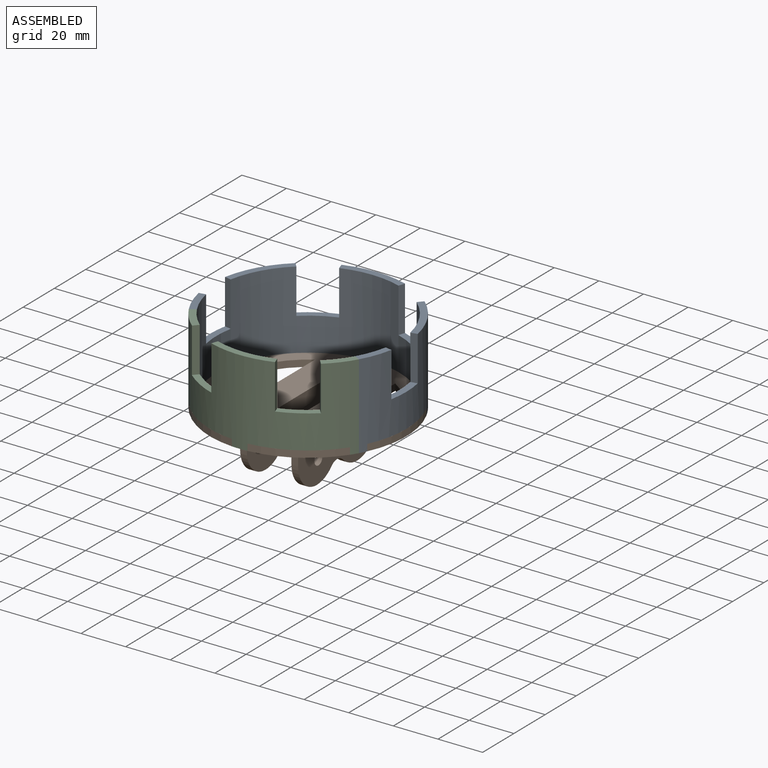
[diagram: assembled view]
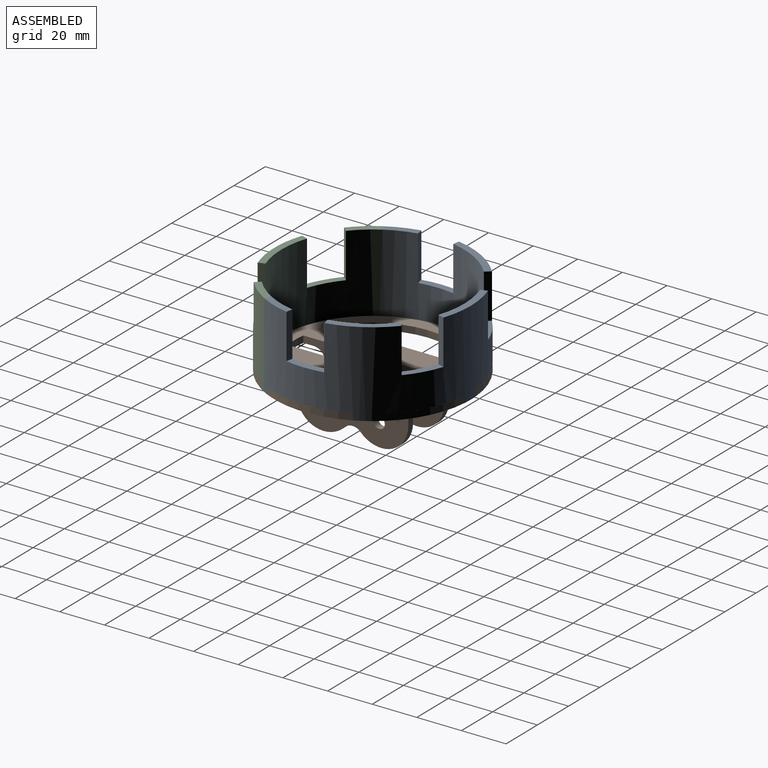
[diagram: assembled view, second angle]
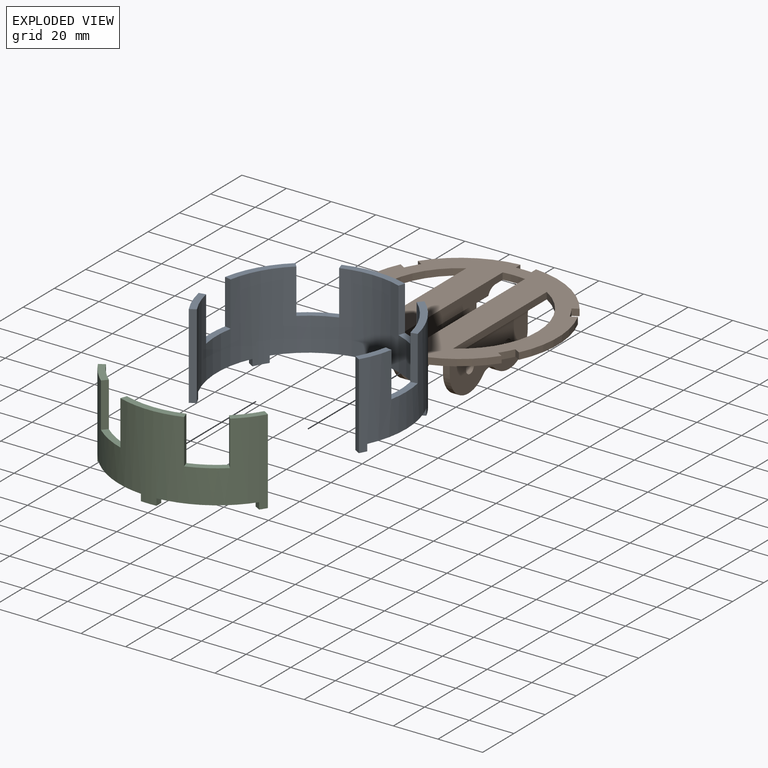
[diagram: exploded view]
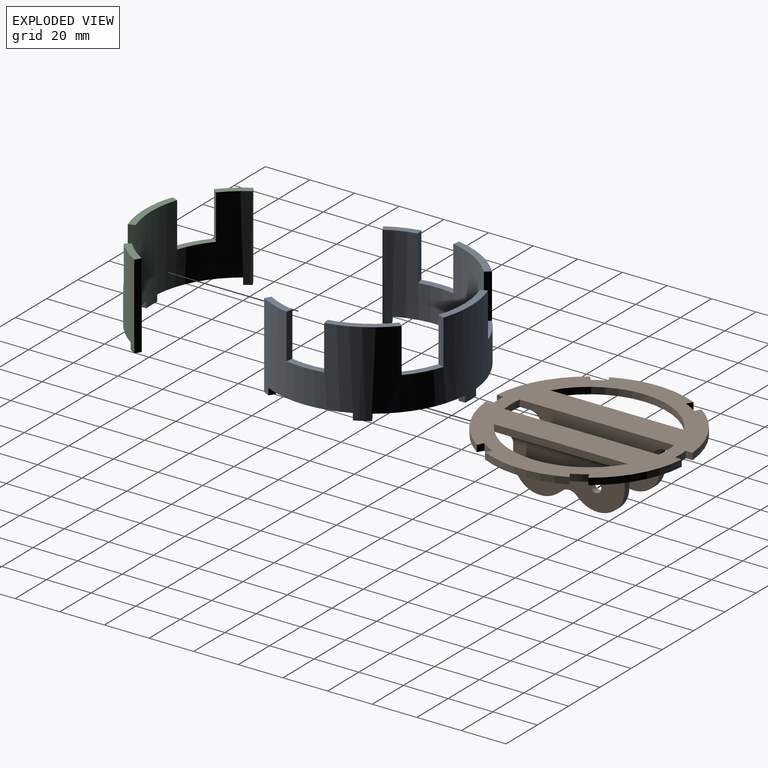
[diagram: exploded view, second angle]
ASSEMBLY  parts=3 mates=2
PART A: 38 faces, bbox 88x66x38 mm
  f0: plane 25.3x16.24mm, normal (0,0,1), area 84mm2, adj f7,f9,f32,f36
  f1: plane 28.55x5.21mm, normal (0,0,1), area 84mm2, adj f7,f9,f29,f33
  f2: plane 25.3x16.24mm, normal (0,0,1), area 84mm2, adj f7,f9,f26,f30
  f3: plane 14.13x7.67mm, normal (0,0,1), area 42mm2, adj f7,f9,f10,f27
  f4: plane 37.8x6.86mm, normal (0,0,-1), area 112.1mm2, adj f7,f9,f18,f23
  f5: plane 32.73x20.4mm, normal (0,0,-1), area 112.1mm2, adj f7,f9,f13,f21
  f6: plane 32.73x20.4mm, normal (0,0,-1), area 112.1mm2, adj f7,f9,f14,f24
  f7: cylinder r=41.01mm len=82.02mm, axis (0,0,-1), area 4828.6mm2, adj f0,f1,f2,f3,f4,f5,f6,f8
  f8: plane 38x2.59mm, normal (0.5,0.87,0), area 113.6mm2, adj f7,f9,f11,f19
  f9: cylinder r=44mm len=88mm, axis (0,0,-1), area 5174.5mm2, adj f0,f1,f2,f3,f4,f5,f6,f8
  f10: plane 38x2.59mm, normal (-0.5,0.87,0), area 113.6mm2, adj f3,f7,f9,f17
  f11: plane 14.12x7.66mm, normal (0,0,1), area 42mm2, adj f7,f8,f9,f35
  f12: plane 37.8x6.86mm, normal (0,0,-1), area 112.1mm2, adj f7,f9,f16,f20
  f13: plane 3x3mm, normal (1,0,0), area 9mm2, adj f5,f7,f9,f15
  f14: plane 3x3mm, normal (-1,0,0), area 9mm2, adj f6,f7,f9,f15
  f15: plane 7x3.14mm, normal (0,0,-1), area 21mm2, adj f7,f9,f13,f14
  f16: plane 3x2.6mm, normal (0.5,-0.87,0), area 9mm2, adj f7,f9,f12,f17
  f17: plane 4.6x4.22mm, normal (0,0,-1), area 10.5mm2, adj f7,f9,f10,f16
  f18: plane 3x2.6mm, normal (-0.5,-0.87,0), area 9mm2, adj f4,f7,f9,f19
  f19: plane 4.6x4.22mm, normal (0,0,-1), area 10.5mm2, adj f7,f8,f9,f18
  f20: plane 3x2.6mm, normal (0.5,0.87,0), area 9mm2, adj f7,f9,f12,f22
  f21: plane 3x2.6mm, normal (-0.5,-0.87,0), area 9mm2, adj f5,f7,f9,f22
  f22: plane 7.56x6.1mm, normal (0,0,-1), area 21mm2, adj f7,f9,f20,f21
  f23: plane 3x2.6mm, normal (-0.5,0.87,0), area 9mm2, adj f4,f7,f9,f25
  f24: plane 3x2.6mm, normal (0.5,-0.87,0), area 9mm2, adj f6,f7,f9,f25
  f25: plane 7.56x6.1mm, normal (0,0,-1), area 21mm2, adj f7,f9,f23,f24
  f26: plane 20x2.93mm, normal (0.19,0.98,0), area 59.8mm2, adj f2,f7,f9,f28
  f27: plane 20x2.93mm, normal (0.19,-0.98,0), area 59.8mm2, adj f3,f7,f9,f28
  f28: plane 16.9x3.75mm, normal (0,0,1), area 49.1mm2, adj f7,f9,f26,f27
  f29: plane 20x2.83mm, normal (0.95,0.32,0), area 59.8mm2, adj f1,f7,f9,f31
  f30: plane 20x2.25mm, normal (-0.75,-0.66,0), area 59.8mm2, adj f2,f7,f9,f31
  f31: plane 15.6x10.7mm, normal (0,0,1), area 49.1mm2, adj f7,f9,f29,f30
  f32: plane 20x2.25mm, normal (0.75,-0.66,0), area 59.8mm2, adj f0,f7,f9,f34
  f33: plane 20x2.83mm, normal (-0.95,0.32,0), area 59.8mm2, adj f1,f7,f9,f34
  f34: plane 15.6x10.7mm, normal (0,0,1), area 49.1mm2, adj f7,f9,f32,f33
  f35: plane 20x2.93mm, normal (-0.19,-0.98,0), area 59.8mm2, adj f7,f9,f11,f37
  f36: plane 20x2.93mm, normal (-0.19,0.98,0), area 59.8mm2, adj f0,f7,f9,f37
  f37: plane 16.9x3.75mm, normal (0,0,1), area 49.1mm2, adj f7,f9,f35,f36
PART B: 64 faces, bbox 88x87.7x26 mm
  f0: plane 50x18mm, normal (-1,0,0), area 739.2mm2, adj f4,f8,f35,f36,f40,f41,f53,f58
  f1: plane 6x3mm, normal (0,-1,0), area 18mm2, adj f5,f6,f42,f57
  f2: plane 6x3mm, normal (0,1,0), area 18mm2, adj f5,f6,f43,f55
  f3: plane 50.84x5mm, normal (0,0,-1), area 254.2mm2, adj f6,f46,f55,f57
  f4: plane 6x3mm, normal (0,-1,0), area 18mm2, adj f0,f7,f41,f52
  f5: plane 50x18mm, normal (1,0,0), area 739.2mm2, adj f1,f2,f37,f38,f42,f43,f56,f60
  f6: plane 50.84x20mm, normal (-1,0,0), area 839.8mm2, adj f1,f2,f3,f37,f38,f42,f43,f55
  f7: plane 50.84x20mm, normal (1,0,0), area 839.8mm2, adj f4,f8,f35,f36,f39,f40,f41,f52
  f8: plane 6x3mm, normal (0,1,0), area 18mm2, adj f0,f7,f40,f54
  f9: plane 3x2.6mm, normal (-0.5,0.87,0), area 9mm2, adj f10,f32,f33,f34
  f10: cylinder r=44mm len=32.73mm, axis (0,0,-1), area 117.2mm2, adj f9,f11,f33,f34
  f11: plane 3x3mm, normal (1,0,0), area 9mm2, adj f10,f12,f33,f34
  f12: cylinder r=41.01mm len=7mm, axis (0,0,-1), area 21mm2, adj f11,f13,f33,f34
  f13: plane 3x3mm, normal (-1,0,0), area 9mm2, adj f12,f14,f33,f34
  f14: cylinder r=44mm len=32.73mm, axis (0,0,-1), area 117.2mm2, adj f13,f15,f33,f34
  f15: plane 3x2.6mm, normal (0.5,0.87,0), area 9mm2, adj f14,f16,f33,f34
  f16: cylinder r=41.01mm len=6.06mm, axis (0,0,-1), area 21mm2, adj f15,f17,f33,f34
  f17: plane 3x2.6mm, normal (-0.5,-0.87,0), area 9mm2, adj f16,f18,f33,f34
  f18: cylinder r=44mm len=37.8mm, axis (0,0,-1), area 117.2mm2, adj f17,f19,f33,f34
  f19: plane 3x2.6mm, normal (-0.5,0.87,0), area 9mm2, adj f18,f20,f33,f34
  f20: cylinder r=41.01mm len=6.06mm, axis (0,0,-1), area 21mm2, adj f19,f21,f33,f34
  f21: plane 3x2.6mm, normal (0.5,-0.87,0), area 9mm2, adj f20,f22,f33,f34
  f22: cylinder r=44mm len=32.73mm, axis (0,0,-1), area 117.2mm2, adj f21,f23,f33,f34
  f23: plane 3x3mm, normal (-1,0,0), area 9mm2, adj f22,f24,f33,f34
  f24: cylinder r=41.01mm len=7mm, axis (0,0,-1), area 21mm2, adj f23,f25,f33,f34
  f25: plane 3x3mm, normal (1,0,0), area 9mm2, adj f24,f26,f33,f34
  f26: cylinder r=44mm len=32.73mm, axis (0,0,-1), area 117.2mm2, adj f25,f27,f33,f34
  f27: plane 3x2.6mm, normal (-0.5,-0.87,0), area 9mm2, adj f26,f28,f33,f34
  f28: cylinder r=41.01mm len=6.06mm, axis (0,0,-1), area 21mm2, adj f27,f29,f33,f34
  f29: plane 3x2.6mm, normal (0.5,0.87,0), area 9mm2, adj f28,f30,f33,f34
  f30: cylinder r=44mm len=37.8mm, axis (0,0,-1), area 117.2mm2, adj f29,f31,f33,f34
  f31: plane 3x2.6mm, normal (0.5,-0.87,0), area 9mm2, adj f30,f32,f33,f34
  f32: cylinder r=41.01mm len=6.06mm, axis (0,0,-1), area 21mm2, adj f9,f31,f33,f34
  f33: plane 88x87.72mm, normal (0,0,1), area 3814.4mm2, adj f9,f10,f11,f12,f13,f14,f15,f16
  f34: plane 88x87.72mm, normal (0,0,-1), area 2254.4mm2, adj f9,f10,f11,f12,f13,f14,f15,f16
  f35: cylinder r=2.5mm len=5mm, axis (-1,0,0), area 47.1mm2, adj f0,f7
  f36: cylinder r=2.5mm len=5mm, axis (-1,0,0), area 47.1mm2, adj f0,f7
  f37: cylinder r=2.5mm len=5mm, axis (-1,0,0), area 47.1mm2, adj f5,f6
  f38: cylinder r=2.5mm len=5mm, axis (-1,0,0), area 47.1mm2, adj f5,f6
  f39: plane 50.84x5mm, normal (0,0,-1), area 254.2mm2, adj f7,f47,f52,f54
  f40: cylinder r=12mm len=12mm, axis (1,0,0), area 56.5mm2, adj f0,f7,f8,f58
  f41: cylinder r=12mm len=12mm, axis (-1,0,0), area 56.5mm2, adj f0,f4,f7,f59
  f42: cylinder r=12mm len=12mm, axis (1,0,0), area 56.5mm2, adj f1,f5,f6,f60
  f43: cylinder r=12mm len=12mm, axis (-1,0,0), area 56.5mm2, adj f2,f5,f6,f61
  f44: cylinder r=35mm len=10mm, axis (0,0,1), area 30.1mm2, adj f33,f34,f46,f47
  f45: cylinder r=35mm len=10mm, axis (0,0,1), area 30.1mm2, adj f33,f34,f46,f47
  f46: plane 69.28x6mm, normal (-1,0,0), area 368mm2, adj f3,f33,f34,f44,f45,f55,f57
  f47: plane 69.28x6mm, normal (1,0,0), area 368mm2, adj f33,f34,f39,f44,f45,f52,f54
  f48: cylinder r=35mm len=60.03mm, axis (0,0,1), area 216.4mm2, adj f33,f34,f49
  f49: plane 60.03x3mm, normal (1,0,0), area 180.1mm2, adj f33,f34,f48,f56
  f50: plane 60.03x3mm, normal (-1,0,0), area 180.1mm2, adj f33,f34,f51,f53
  f51: cylinder r=35mm len=60.03mm, axis (0,0,1), area 216.4mm2, adj f33,f34,f50
  f52: cylinder r=5mm len=13mm, axis (-1,0,0), area 66.8mm2, adj f4,f7,f34,f39,f47,f53
  f53: cylinder r=5mm len=60mm, axis (0,1,0), area 421.2mm2, adj f0,f50,f52,f54
  f54: cylinder r=5mm len=13mm, axis (1,0,0), area 66.8mm2, adj f7,f8,f34,f39,f47,f53
  f55: cylinder r=5mm len=13mm, axis (1,0,0), area 66.8mm2, adj f2,f3,f6,f34,f46,f56
  f56: cylinder r=5mm len=60mm, axis (0,-1,0), area 421.2mm2, adj f5,f49,f55,f57
  f57: cylinder r=5mm len=13mm, axis (-1,0,0), area 66.8mm2, adj f1,f3,f6,f34,f46,f56
  f58: cylinder r=13.04mm len=9.4mm, axis (-1,0,0), area 31.5mm2, adj f0,f7,f40,f62
  f59: cylinder r=13.04mm len=9.4mm, axis (-1,0,0), area 31.5mm2, adj f0,f7,f41,f62
  f60: cylinder r=13.04mm len=9.4mm, axis (-1,0,0), area 31.5mm2, adj f5,f6,f42,f63
  f61: cylinder r=13.04mm len=9.4mm, axis (-1,0,0), area 31.5mm2, adj f5,f6,f43,f63
  f62: cylinder r=5mm len=7.21mm, axis (1,0,0), area 24.1mm2, adj f0,f7,f58,f59
  f63: cylinder r=5mm len=7.21mm, axis (1,0,0), area 24.1mm2, adj f5,f6,f60,f61
PART C: 22 faces, bbox 76.2x23.5x38 mm
  f0: plane 28.55x5.21mm, normal (0,0,1), area 84mm2, adj f2,f6,f17,f20
  f1: plane 12.66x11.16mm, normal (0,0,1), area 42mm2, adj f2,f5,f6,f16
  f2: cylinder r=44mm len=76.21mm, axis (0,0,-1), area 2587.3mm2, adj f0,f1,f3,f4,f5,f7,f8,f9
  f3: plane 32.73x20.4mm, normal (0,0,-1), area 112.1mm2, adj f2,f6,f9,f11
  f4: plane 32.73x20.4mm, normal (0,0,-1), area 112.1mm2, adj f2,f6,f12,f14
  f5: plane 38x2.59mm, normal (0.5,0.87,0), area 113.6mm2, adj f1,f2,f6,f10
  f6: cylinder r=41.01mm len=71.03mm, axis (0,0,-1), area 2414.3mm2, adj f0,f1,f3,f4,f5,f7,f8,f9
  f7: plane 38x2.59mm, normal (-0.5,0.87,0), area 113.6mm2, adj f2,f6,f8,f15
  f8: plane 12.66x11.16mm, normal (0,0,1), area 42mm2, adj f2,f6,f7,f19
  f9: plane 3x2.6mm, normal (-0.5,-0.87,0), area 9mm2, adj f2,f3,f6,f10
  f10: plane 4.47x4.46mm, normal (0,0,-1), area 10.5mm2, adj f2,f5,f6,f9
  f11: plane 3x3mm, normal (1,0,0), area 9mm2, adj f2,f3,f6,f13
  f12: plane 3x3mm, normal (-1,0,0), area 9mm2, adj f2,f4,f6,f13
  f13: plane 7x3.14mm, normal (0,0,-1), area 21mm2, adj f2,f6,f11,f12
  f14: plane 3x2.6mm, normal (0.5,-0.87,0), area 9mm2, adj f2,f4,f6,f15
  f15: plane 4.47x4.46mm, normal (0,0,-1), area 10.5mm2, adj f2,f6,f7,f14
  f16: plane 20x2.25mm, normal (-0.75,-0.66,0), area 59.8mm2, adj f1,f2,f6,f18
  f17: plane 20x2.83mm, normal (0.95,0.32,0), area 59.8mm2, adj f0,f2,f6,f18
  f18: plane 15.6x10.7mm, normal (0,0,1), area 49.1mm2, adj f2,f6,f16,f17
  f19: plane 20x2.25mm, normal (0.75,-0.66,0), area 59.8mm2, adj f2,f6,f8,f21
  f20: plane 20x2.83mm, normal (-0.95,0.32,0), area 59.8mm2, adj f0,f2,f6,f21
  f21: plane 15.6x10.7mm, normal (0,0,1), area 49.1mm2, adj f2,f6,f19,f20
PLACE A rot(axis=(0,0,-1),180deg) t=(-13.54,-135.24,41.76)mm
PLACE B t=(-13.54,64.76,38.76)mm
PLACE C t=(-13.54,164.76,41.76)mm
MATE fastened A.f18 <-> B.f17  axis (0.5,0.87,0) through (24.89,46.61,45.26)mm
MATE fastened C.f14 <-> B.f9  axis (0.5,-0.87,0) through (-48.48,40.55,45.26)mm
